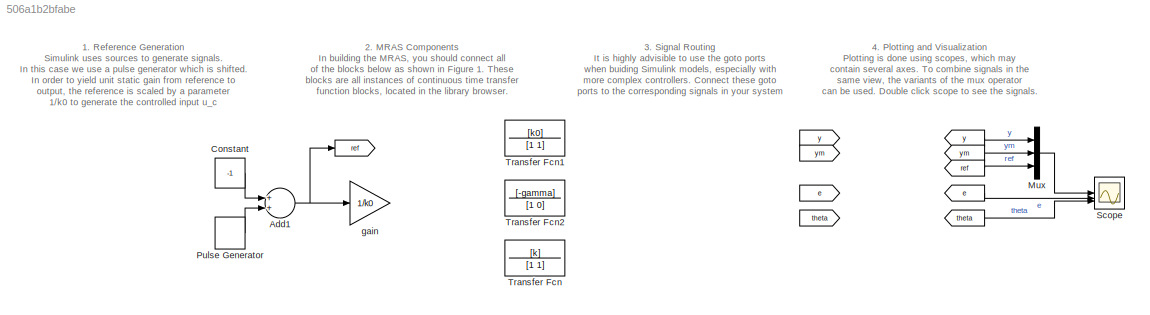
MODEL slx_506a1b2bfabe
KIND library
CONFIG AbsTol = auto
CONFIG EnableMultiTasking = off
CONFIG FixedStep = auto
CONFIG MaxStep = auto
CONFIG MinStep = auto
CONFIG RelTol = 1e-3
CONFIG SampleTimeConstraint = Unconstrained
CONFIG SolverName = VariableStepAuto
CONFIG StartTime = 0.0
CONFIG StopTime = 10.0
BLOCK [From]  
  GotoTag = y
BLOCK [From]   
  GotoTag = ym
BLOCK [From]    
  GotoTag = ref
BLOCK [From]     
  GotoTag = e
BLOCK [From]      
  GotoTag = theta
BLOCK [Goto]       
  GotoTag = y
BLOCK [Goto]        
  GotoTag = ym
BLOCK [Goto]         
  GotoTag = e
  NameLocation = top
BLOCK [Goto]          
  GotoTag = theta
BLOCK [Goto]           
  GotoTag = ref
BLOCK [Sum] Add1
BLOCK [Constant] Constant
  SampleTime = 0.1
  Value = -1
BLOCK [Mux] Mux
  DisplayOption = bar
  Inputs = 3
BLOCK [DiscretePulseGenerator] Pulse Generator
  Amplitude = 2
  Period = 10
  PulseType = Time based
  PulseWidth = 50
BLOCK [Scope] Scope
  Floating = off
  NumInputPorts = 3
  ScopeSpecificationString = Simulink.scopes.TimeScopeBlockCfg('CurrentConfiguration', extmgr.ConfigurationSet(extmgr.Configuration('Core','General UI',true,'FigureColor',[1 1 1]),extmgr.Configuration('Core','Source UI',true),extmgr.Configuration('Sources','WiredSimulink',true,'DataLoggingSaveFormat','StructureWithTime','DataLoggingLimitDataPoints',true,'DataLoggingDecimation','1','DataLoggingDecimateData',true),extmgr.Config...<+5441ch>
BLOCK [TransferFcn] Transfer Fcn
  Denominator = [1 1]
  Numerator = [k]
BLOCK [TransferFcn] Transfer Fcn1
  Denominator = [1 1]
  Numerator = [k0]
BLOCK [TransferFcn] Transfer Fcn2
  Denominator = [1 0]
  Numerator = [-gamma]
BLOCK [Gain] gain
  Gain = 1/k0
ANNOTATION (root): 3. Signal Routing It is highly advisible to use the goto ports when buiding Simulink models, especially with more complex controllers. Connect these goto ports to the corresponding signals in your system
ANNOTATION (root): 1. Reference Generation Simulink uses sources to generate signals. In this case we use a pulse generator which is shifted. In order to yield unit static gain from reference to output, the reference is scaled by a parameter 1/k0 to generate the controlled input u_c
ANNOTATION (root): 2. MRAS Components In building the MRAS, you should connect all of the blocks below as shown in Figure 1. These blocks are all instances of continuous time transfer function blocks, located in the library browser.
ANNOTATION (root): 4. Plotting and Visualization Plotting is done using scopes, which may contain several axes. To combine signals in the same view, the variants of the mux operator can be used. Double click scope to see the signals.
LINE      :1 -> Scope:3
LINE     :1 -> Scope:2
LINE    :1 -> Mux:3
LINE   :1 -> Mux:2
LINE  :1 -> Mux:1
NET Add1:1 ->           :1, gain:1
LINE Constant:1 -> Add1:1
LINE Mux:1 -> Scope:1
LINE Pulse Generator:1 -> Add1:2
note: NET lines group one-source signal fan-out (src -> all destinations, sorted); 1:1 wires keep LINE
